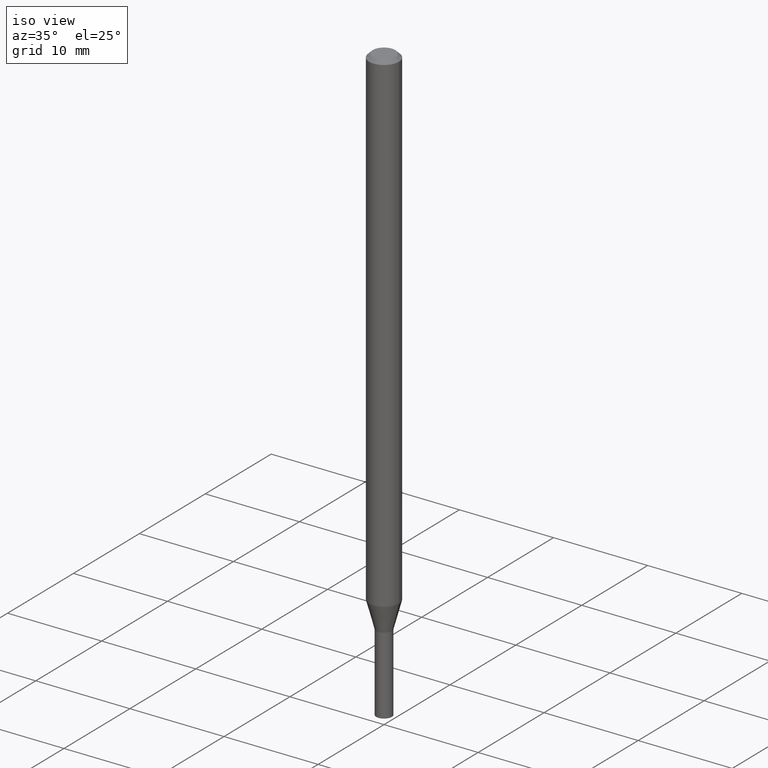
[diagram: clean part render]
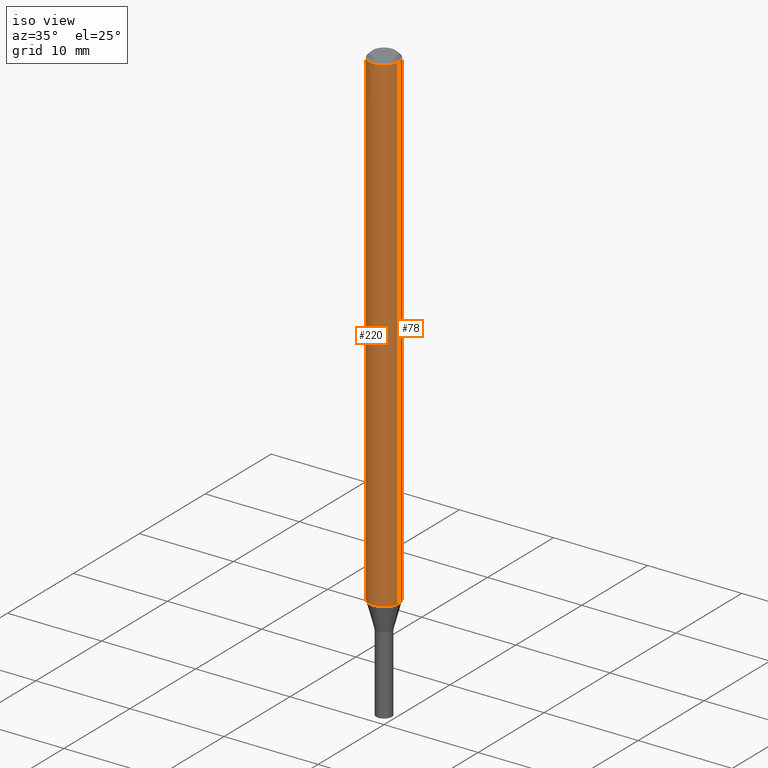
[diagram: same view with one multi-face feature highlighted, each face labeled with its STEP entity id]
A machine part, iso view. The highlighted faces form ONE feature: a constant-radius fillet chain: 2 tangent blend faces with common blend radius 1.5875 mm. The faces share edges in the B-rep.
Their STEP definitions:
[1] entity #78 (Cylinder):
#5 = DIRECTION ( 'NONE',  ( -2.445468806185136877E-29, 3.491481338843145188E-15, 1.000000000000000000 ) ) ;
#26 = DIRECTION ( 'NONE',  ( 1.000000000000000000, -6.982962677686262766E-15, 0.000000000000000000 ) ) ;
#28 = CARTESIAN_POINT ( 'NONE',  ( -0.06250000000000000000, -3.183627069929565528E-15, -0.01499999999999999944 ) ) ;
#54 = VERTEX_POINT ( 'NONE', #453 ) ;
#64 = VERTEX_POINT ( 'NONE', #28 ) ;
#68 = CARTESIAN_POINT ( 'NONE',  ( 3.668203209277705088E-31, -5.237222008264718399E-17, -0.01499999999999999944 ) ) ;
#70 = DIRECTION ( 'NONE',  ( -2.445468806185136597E-29, 3.491481338843145583E-15, 1.000000000000000000 ) ) ;
#78 = ADVANCED_FACE ( 'NONE', ( #435 ), #260, .T. ) ;
#101 = DIRECTION ( 'NONE',  ( -2.445468806185136877E-29, 3.491481338843145188E-15, 1.000000000000000000 ) ) ;
#110 = VECTOR ( 'NONE', #5, 39.37007874015748143 ) ;
#114 = CARTESIAN_POINT ( 'NONE',  ( 0.06250000000000000000, -4.888073874380388472E-16, -0.01499999999999999944 ) ) ;
#117 = DIRECTION ( 'NONE',  ( 1.000000000000000000, -6.982962677686266711E-15, 4.876176775795935793E-29 ) ) ;
#145 = DIRECTION ( 'NONE',  ( 1.000000000000000000, -6.982962677686266711E-15, 0.000000000000000000 ) ) ;
#146 = EDGE_CURVE ( 'NONE', #439, #64, #404, .T. ) ;
#147 = CARTESIAN_POINT ( 'NONE',  ( 0.000000000000000000, 0.000000000000000000, 0.000000000000000000 ) ) ;
#157 = EDGE_LOOP ( 'NONE', ( #262, #218, #376, #336 ) ) ;
#169 = EDGE_CURVE ( 'NONE', #54, #64, #251, .T. ) ;
#185 = CIRCLE ( 'NONE', #259, 0.06250000000000000000 ) ;
#201 = VECTOR ( 'NONE', #101, 39.37007874015748143 ) ;
#204 = CARTESIAN_POINT ( 'NONE',  ( 0.06250000000000000000, -7.639495506831999695E-15, -2.063038475772934532 ) ) ;
#208 = CARTESIAN_POINT ( 'NONE',  ( 0.06250000000000000000, -4.364351673553916694E-16, 3.047610484872459871E-30 ) ) ;
#218 = ORIENTED_EDGE ( 'NONE', *, *, #169, .T. ) ;
#242 = VERTEX_POINT ( 'NONE', #204 ) ;
#248 = AXIS2_PLACEMENT_3D ( 'NONE', #147, #283, #117 ) ;
#251 = LINE ( 'NONE', #273, #201 ) ;
#259 = AXIS2_PLACEMENT_3D ( 'NONE', #418, #382, #26 ) ;
#260 = CYLINDRICAL_SURFACE ( 'NONE', #248, 0.06250000000000000000 ) ;
#262 = ORIENTED_EDGE ( 'NONE', *, *, #436, .T. ) ;
#273 = CARTESIAN_POINT ( 'NONE',  ( -0.06250000000000000000, 4.440892098500626162E-16, -3.074334431409316114E-30 ) ) ;
#283 = DIRECTION ( 'NONE',  ( -2.445468806185136597E-29, 3.491481338843145583E-15, 1.000000000000000000 ) ) ;
#301 = EDGE_CURVE ( 'NONE', #242, #439, #441, .T. ) ;
#336 = ORIENTED_EDGE ( 'NONE', *, *, #301, .F. ) ;
#368 = AXIS2_PLACEMENT_3D ( 'NONE', #68, #70, #145 ) ;
#376 = ORIENTED_EDGE ( 'NONE', *, *, #146, .F. ) ;
#382 = DIRECTION ( 'NONE',  ( -2.445468806185136597E-29, 3.491481338843145583E-15, 1.000000000000000000 ) ) ;
#404 = CIRCLE ( 'NONE', #368, 0.06250000000000000000 ) ;
#418 = CARTESIAN_POINT ( 'NONE',  ( 5.045096238462442621E-29, -7.203060339476608026E-15, -2.063038475772934532 ) ) ;
#435 = FACE_OUTER_BOUND ( 'NONE', #157, .T. ) ;
#436 = EDGE_CURVE ( 'NONE', #242, #54, #185, .T. ) ;
#439 = VERTEX_POINT ( 'NONE', #114 ) ;
#441 = LINE ( 'NONE', #208, #110 ) ;
#453 = CARTESIAN_POINT ( 'NONE',  ( -0.06250000000000000000, -6.758971129626546198E-15, -2.063038475772934532 ) ) ;
[2] entity #220 (Cylinder):
#5 = DIRECTION ( 'NONE',  ( -2.445468806185136877E-29, 3.491481338843145188E-15, 1.000000000000000000 ) ) ;
#28 = CARTESIAN_POINT ( 'NONE',  ( -0.06250000000000000000, -3.183627069929565528E-15, -0.01499999999999999944 ) ) ;
#54 = VERTEX_POINT ( 'NONE', #453 ) ;
#64 = VERTEX_POINT ( 'NONE', #28 ) ;
#75 = AXIS2_PLACEMENT_3D ( 'NONE', #347, #181, #213 ) ;
#89 = AXIS2_PLACEMENT_3D ( 'NONE', #459, #391, #246 ) ;
#101 = DIRECTION ( 'NONE',  ( -2.445468806185136877E-29, 3.491481338843145188E-15, 1.000000000000000000 ) ) ;
#110 = VECTOR ( 'NONE', #5, 39.37007874015748143 ) ;
#114 = CARTESIAN_POINT ( 'NONE',  ( 0.06250000000000000000, -4.888073874380388472E-16, -0.01499999999999999944 ) ) ;
#143 = AXIS2_PLACEMENT_3D ( 'NONE', #349, #460, #422 ) ;
#169 = EDGE_CURVE ( 'NONE', #54, #64, #251, .T. ) ;
#174 = CIRCLE ( 'NONE', #89, 0.06250000000000000000 ) ;
#181 = DIRECTION ( 'NONE',  ( -2.445468806185136597E-29, 3.491481338843145583E-15, 1.000000000000000000 ) ) ;
#182 = CIRCLE ( 'NONE', #143, 0.06250000000000000000 ) ;
#191 = EDGE_CURVE ( 'NONE', #54, #242, #174, .T. ) ;
#201 = VECTOR ( 'NONE', #101, 39.37007874015748143 ) ;
#204 = CARTESIAN_POINT ( 'NONE',  ( 0.06250000000000000000, -7.639495506831999695E-15, -2.063038475772934532 ) ) ;
#208 = CARTESIAN_POINT ( 'NONE',  ( 0.06250000000000000000, -4.364351673553916694E-16, 3.047610484872459871E-30 ) ) ;
#213 = DIRECTION ( 'NONE',  ( 1.000000000000000000, -6.982962677686266711E-15, 4.876176775795935793E-29 ) ) ;
#220 = ADVANCED_FACE ( 'NONE', ( #244 ), #383, .T. ) ;
#242 = VERTEX_POINT ( 'NONE', #204 ) ;
#244 = FACE_OUTER_BOUND ( 'NONE', #298, .T. ) ;
#246 = DIRECTION ( 'NONE',  ( 1.000000000000000000, -6.982962677686262766E-15, 0.000000000000000000 ) ) ;
#251 = LINE ( 'NONE', #273, #201 ) ;
#258 = ORIENTED_EDGE ( 'NONE', *, *, #169, .F. ) ;
#267 = ORIENTED_EDGE ( 'NONE', *, *, #398, .F. ) ;
#273 = CARTESIAN_POINT ( 'NONE',  ( -0.06250000000000000000, 4.440892098500626162E-16, -3.074334431409316114E-30 ) ) ;
#280 = ORIENTED_EDGE ( 'NONE', *, *, #191, .T. ) ;
#298 = EDGE_LOOP ( 'NONE', ( #258, #280, #411, #267 ) ) ;
#301 = EDGE_CURVE ( 'NONE', #242, #439, #441, .T. ) ;
#347 = CARTESIAN_POINT ( 'NONE',  ( 0.000000000000000000, 0.000000000000000000, 0.000000000000000000 ) ) ;
#349 = CARTESIAN_POINT ( 'NONE',  ( 3.668203209277705088E-31, -5.237222008264718399E-17, -0.01499999999999999944 ) ) ;
#383 = CYLINDRICAL_SURFACE ( 'NONE', #75, 0.06250000000000000000 ) ;
#391 = DIRECTION ( 'NONE',  ( -2.445468806185136597E-29, 3.491481338843145583E-15, 1.000000000000000000 ) ) ;
#398 = EDGE_CURVE ( 'NONE', #64, #439, #182, .T. ) ;
#411 = ORIENTED_EDGE ( 'NONE', *, *, #301, .T. ) ;
#422 = DIRECTION ( 'NONE',  ( 1.000000000000000000, -6.982962677686266711E-15, 0.000000000000000000 ) ) ;
#439 = VERTEX_POINT ( 'NONE', #114 ) ;
#441 = LINE ( 'NONE', #208, #110 ) ;
#453 = CARTESIAN_POINT ( 'NONE',  ( -0.06250000000000000000, -6.758971129626546198E-15, -2.063038475772934532 ) ) ;
#459 = CARTESIAN_POINT ( 'NONE',  ( 5.045096238462442621E-29, -7.203060339476608026E-15, -2.063038475772934532 ) ) ;
#460 = DIRECTION ( 'NONE',  ( -2.445468806185136597E-29, 3.491481338843145583E-15, 1.000000000000000000 ) ) ;